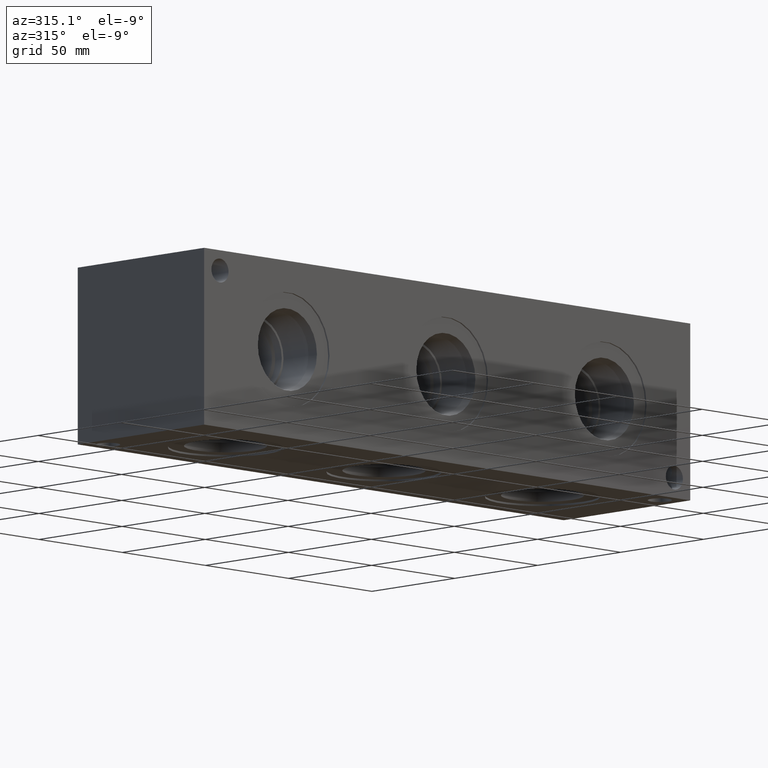
[diagram: clean part render]
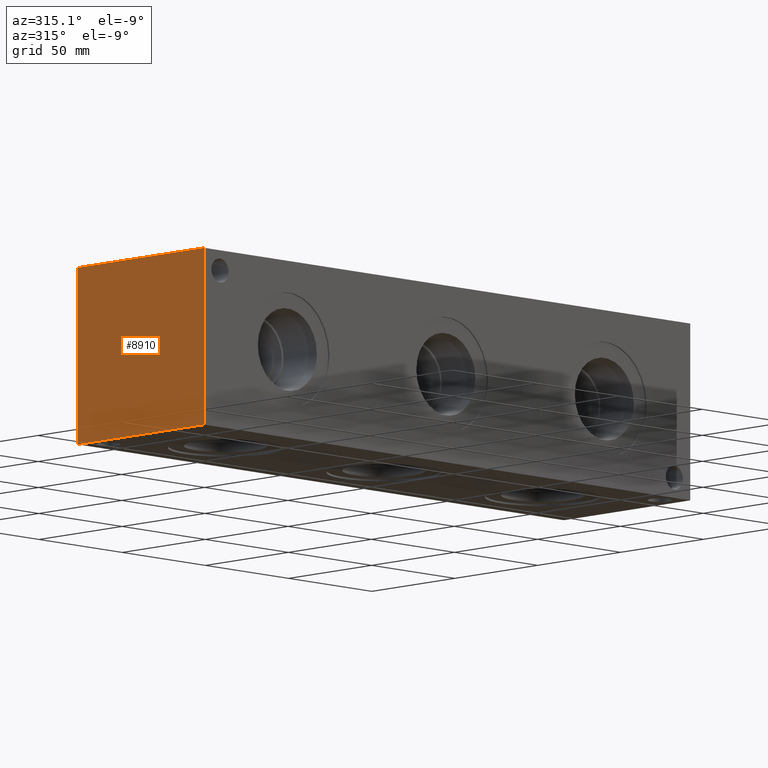
[diagram: same view with one face highlighted and labeled with its STEP entity id]
A machine part, auxiliary view. The second image highlights one B-rep face of the part: STEP entity #8910.
In plain terms, the highlighted planar face has unit normal (-1, 0, 0).
Its self-contained STEP definition (entity closure, byte-faithful):
#1278=FACE_OUTER_BOUND('',#1796,.T.);
#1796=EDGE_LOOP('',(#7861,#7862,#7863,#7864));
#2098=LINE('',#13760,#2849);
#2557=LINE('',#15691,#3308);
#2558=LINE('',#15692,#3309);
#2559=LINE('',#15693,#3310);
#2849=VECTOR('',#9989,10.);
#3308=VECTOR('',#11546,10.);
#3309=VECTOR('',#11547,10.);
#3310=VECTOR('',#11548,10.);
#3630=VERTEX_POINT('',#13753);
#3633=VERTEX_POINT('',#13758);
#4135=VERTEX_POINT('',#15689);
#4136=VERTEX_POINT('',#15690);
#4613=EDGE_CURVE('',#3633,#3630,#2098,.T.);
#5386=EDGE_CURVE('',#4135,#4136,#2557,.T.);
#5387=EDGE_CURVE('',#4136,#3630,#2558,.T.);
#5388=EDGE_CURVE('',#4135,#3633,#2559,.T.);
#7861=ORIENTED_EDGE('',*,*,#5386,.T.);
#7862=ORIENTED_EDGE('',*,*,#5387,.T.);
#7863=ORIENTED_EDGE('',*,*,#4613,.F.);
#7864=ORIENTED_EDGE('',*,*,#5388,.F.);
#8132=PLANE('',#9551);
#8910=ADVANCED_FACE('',(#1278),#8132,.T.);
#9551=AXIS2_PLACEMENT_3D('',#15688,#11544,#11545);
#9989=DIRECTION('',(0.,-1.,0.));
#11544=DIRECTION('center_axis',(-1.,0.,0.));
#11545=DIRECTION('ref_axis',(0.,-1.,0.));
#11546=DIRECTION('',(0.,-1.,0.));
#11547=DIRECTION('',(0.,0.,1.));
#11548=DIRECTION('',(0.,0.,1.));
#13753=CARTESIAN_POINT('',(0.,0.,76.2));
#13758=CARTESIAN_POINT('',(0.,76.2,76.2));
#13760=CARTESIAN_POINT('',(0.,76.2,76.2));
#15688=CARTESIAN_POINT('Origin',(0.,76.2,0.));
#15689=CARTESIAN_POINT('',(0.,76.2,0.));
#15690=CARTESIAN_POINT('',(0.,0.,0.));
#15691=CARTESIAN_POINT('',(0.,76.2,0.));
#15692=CARTESIAN_POINT('',(0.,0.,0.));
#15693=CARTESIAN_POINT('',(0.,76.2,0.));